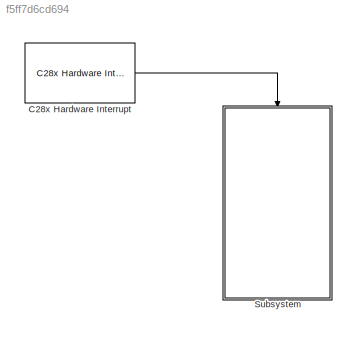
MODEL slx_f5ff7d6cd694
KIND model
CONFIG AbsTol = auto
CONFIG EnableMultiTasking = on
CONFIG FixedStep = auto
CONFIG MaxStep = auto
CONFIG MinStep = auto
CONFIG RelTol = 1e-3
CONFIG SampleTimeConstraint = Unconstrained
CONFIG Solver = FixedStepDiscrete
CONFIG SolverName = FixedStepDiscrete
CONFIG StartTime = 0.0
CONFIG StopTime = Inf
BLOCK [Reference] C28x Hardware Interrupt  REF=c2000lib/Scheduling/C28x Hardware Interrupt
  Ports = [0, 1]
  SourceBlock = c2000lib/Scheduling/C28x Hardware Interrupt
  SourceProductBaseCode = TIC2000
  SourceProductName = Embedded Coder Support Package for Texas Instruments C2000 Processors
  SourceType = C28x Interrupt Block
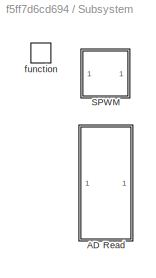
BLOCK [SubSystem] Subsystem
  Ports = [0, 0, 0, 1]
  RequestExecContextInheritance = off
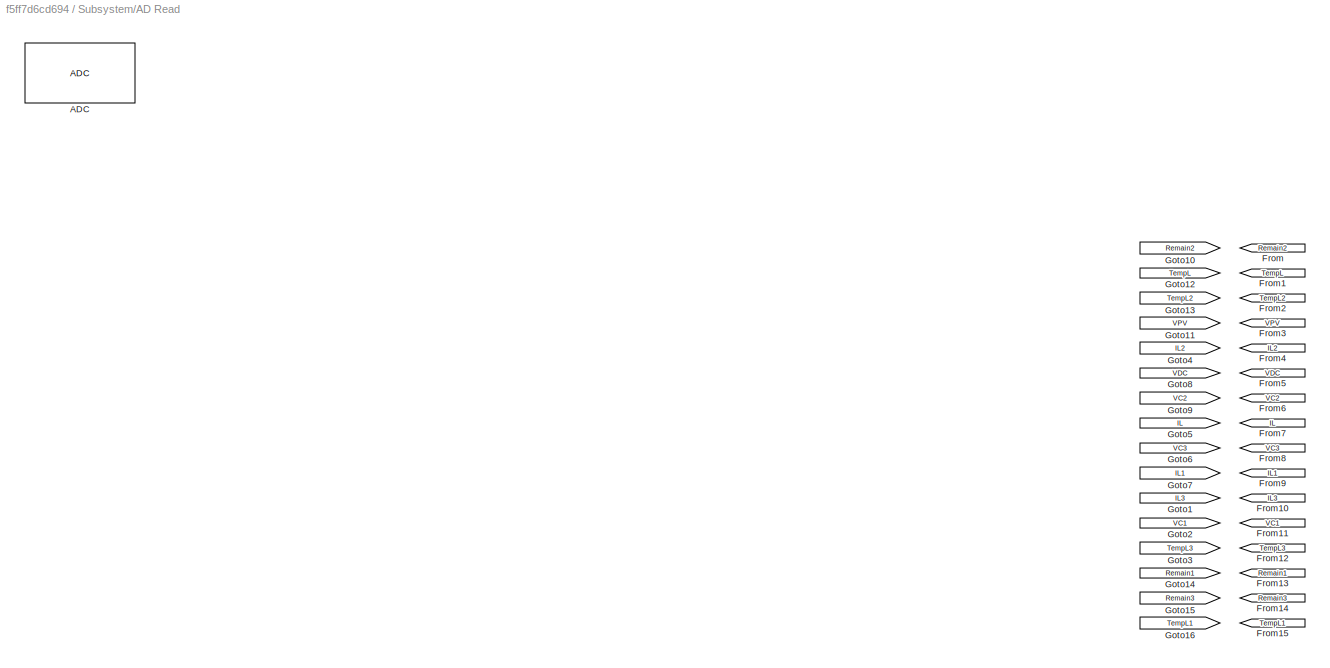
BLOCK [SubSystem] Subsystem/AD Read
  Ports = []
  RequestExecContextInheritance = off
BLOCK [Reference] Subsystem/AD Read/ADC  REF=c2802xlib/ADC
  Ports = [0, 1]
  SourceBlock = c2802xlib/ADC
  SourceProductBaseCode = TIC2000
  SourceProductName = Embedded Coder Support Package for Texas Instruments C2000 Processors
  SourceType = C2802x/03x/05x/06x/M3x/37x/07x/004x ADC
  UserDataPersistent = on
BLOCK [From] Subsystem/AD Read/From
  GotoTag = Remain2
  TagVisibility = global
BLOCK [From] Subsystem/AD Read/From1
  GotoTag = TempL
  TagVisibility = global
BLOCK [From] Subsystem/AD Read/From10
  GotoTag = IL3
  TagVisibility = global
BLOCK [From] Subsystem/AD Read/From11
  GotoTag = VC1
  TagVisibility = global
BLOCK [From] Subsystem/AD Read/From12
  GotoTag = TempL3
  TagVisibility = global
BLOCK [From] Subsystem/AD Read/From13
  GotoTag = Remain1
  TagVisibility = global
BLOCK [From] Subsystem/AD Read/From14
  GotoTag = Remain3
  TagVisibility = global
BLOCK [From] Subsystem/AD Read/From15
  GotoTag = TempL1
  TagVisibility = global
BLOCK [From] Subsystem/AD Read/From2
  GotoTag = TempL2
  TagVisibility = global
BLOCK [From] Subsystem/AD Read/From3
  GotoTag = VPV
  TagVisibility = global
BLOCK [From] Subsystem/AD Read/From4
  GotoTag = IL2
  TagVisibility = global
BLOCK [From] Subsystem/AD Read/From5
  GotoTag = VDC
  TagVisibility = global
BLOCK [From] Subsystem/AD Read/From6
  GotoTag = VC2
  TagVisibility = global
BLOCK [From] Subsystem/AD Read/From7
  GotoTag = IL
  TagVisibility = global
BLOCK [From] Subsystem/AD Read/From8
  GotoTag = VC3
  TagVisibility = global
BLOCK [From] Subsystem/AD Read/From9
  GotoTag = IL1
  TagVisibility = global
BLOCK [Goto] Subsystem/AD Read/Goto1
  GotoTag = IL3
  TagVisibility = global
BLOCK [Goto] Subsystem/AD Read/Goto10
  GotoTag = Remain2
  TagVisibility = global
BLOCK [Goto] Subsystem/AD Read/Goto11
  GotoTag = VPV
  TagVisibility = global
BLOCK [Goto] Subsystem/AD Read/Goto12
  GotoTag = TempL
  TagVisibility = global
BLOCK [Goto] Subsystem/AD Read/Goto13
  GotoTag = TempL2
  TagVisibility = global
BLOCK [Goto] Subsystem/AD Read/Goto14
  GotoTag = Remain1
  TagVisibility = global
BLOCK [Goto] Subsystem/AD Read/Goto15
  GotoTag = Remain3
  TagVisibility = global
BLOCK [Goto] Subsystem/AD Read/Goto16
  GotoTag = TempL1
  TagVisibility = global
BLOCK [Goto] Subsystem/AD Read/Goto2
  GotoTag = VC1
  TagVisibility = global
BLOCK [Goto] Subsystem/AD Read/Goto3
  GotoTag = TempL3
  TagVisibility = global
BLOCK [Goto] Subsystem/AD Read/Goto4
  GotoTag = IL2
  TagVisibility = global
BLOCK [Goto] Subsystem/AD Read/Goto5
  GotoTag = IL
  TagVisibility = global
BLOCK [Goto] Subsystem/AD Read/Goto6
  GotoTag = VC3
  TagVisibility = global
BLOCK [Goto] Subsystem/AD Read/Goto7
  GotoTag = IL1
  TagVisibility = global
BLOCK [Goto] Subsystem/AD Read/Goto8
  GotoTag = VDC
  TagVisibility = global
BLOCK [Goto] Subsystem/AD Read/Goto9
  GotoTag = VC2
  TagVisibility = global
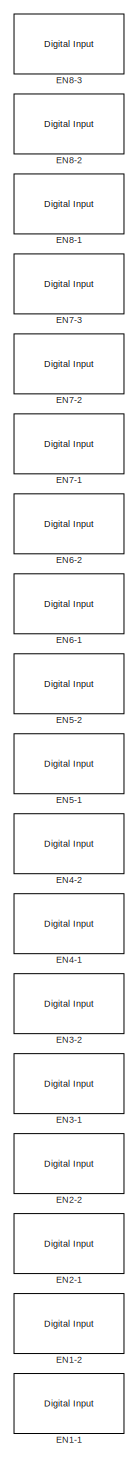
[diagram: Subsystem/SPWM - part 1/2, left side, full height]
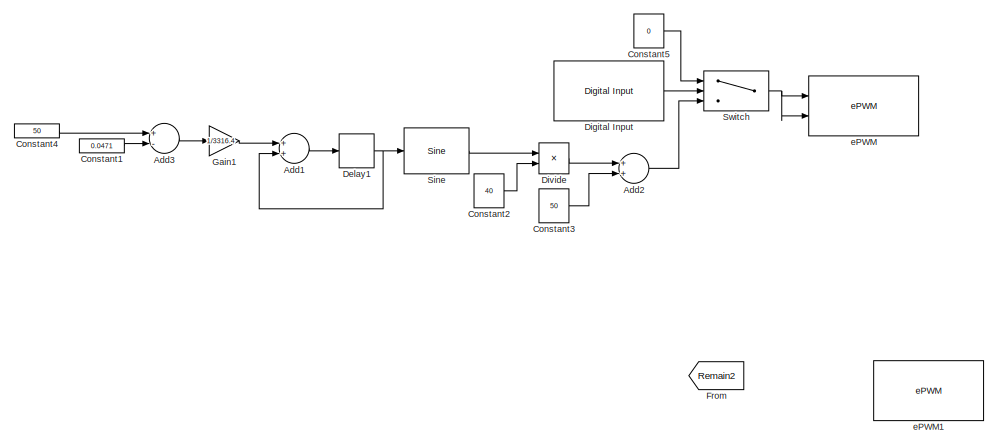
[diagram: Subsystem/SPWM - part 2/2, central region]
BLOCK [SubSystem] Subsystem/SPWM
  Ports = []
  RequestExecContextInheritance = off
BLOCK [Sum] Subsystem/SPWM/Add1
  InputSameDT = off
  OutDataTypeStr = Inherit: Inherit via internal rule
  Ports = [2, 1]
  SaturateOnIntegerOverflow = off
BLOCK [Sum] Subsystem/SPWM/Add2
  InputSameDT = off
  OutDataTypeStr = Inherit: Inherit via internal rule
  Ports = [2, 1]
  SaturateOnIntegerOverflow = off
BLOCK [Sum] Subsystem/SPWM/Add3
  InputSameDT = off
  Inputs = +-
  OutDataTypeStr = Inherit: Inherit via internal rule
  Ports = [2, 1]
  SaturateOnIntegerOverflow = off
BLOCK [Constant] Subsystem/SPWM/Constant1
  Value = 0.0471
  VectorParams1D = off
BLOCK [Constant] Subsystem/SPWM/Constant2
  Value = 40
  VectorParams1D = off
BLOCK [Constant] Subsystem/SPWM/Constant3
  Value = 50
  VectorParams1D = off
BLOCK [Constant] Subsystem/SPWM/Constant4
  Value = 50
  VectorParams1D = off
BLOCK [Constant] Subsystem/SPWM/Constant5
  Value = 0
  VectorParams1D = off
BLOCK [Delay] Subsystem/SPWM/Delay1
  DelayLength = 1
  InputPortMap = u0
  Ports = [1, 1]
BLOCK [Reference] Subsystem/SPWM/Digital Input  REF=c2837xDlib/Digital Input
  Ports = [0, 1]
  SourceBlock = c2837xDlib/Digital Input
  SourceProductBaseCode = TIC2000
  SourceProductName = Embedded Coder Support Package for Texas Instruments C2000 Processors
  SourceType = F2837x GPIO Digital Input
  UserDataPersistent = on
BLOCK [Product] Subsystem/SPWM/Divide
  InputSameDT = off
  Inputs = **
  OutDataTypeStr = Inherit: Inherit via internal rule
  Ports = [2, 1]
  RndMeth = Floor
  SaturateOnIntegerOverflow = off
BLOCK [Reference] Subsystem/SPWM/EN1-1  REF=c2837xDlib/Digital Input
  Ports = [0, 1]
  SourceBlock = c2837xDlib/Digital Input
  SourceProductBaseCode = TIC2000
  SourceProductName = Embedded Coder Support Package for Texas Instruments C2000 Processors
  SourceType = F2837x GPIO Digital Input
  UserDataPersistent = on
BLOCK [Reference] Subsystem/SPWM/EN1-2  REF=c2837xDlib/Digital Input
  Ports = [0, 1]
  SourceBlock = c2837xDlib/Digital Input
  SourceProductBaseCode = TIC2000
  SourceProductName = Embedded Coder Support Package for Texas Instruments C2000 Processors
  SourceType = F2837x GPIO Digital Input
  UserDataPersistent = on
BLOCK [Reference] Subsystem/SPWM/EN2-1  REF=c2837xDlib/Digital Input
  Ports = [0, 1]
  SourceBlock = c2837xDlib/Digital Input
  SourceProductBaseCode = TIC2000
  SourceProductName = Embedded Coder Support Package for Texas Instruments C2000 Processors
  SourceType = F2837x GPIO Digital Input
  UserDataPersistent = on
BLOCK [Reference] Subsystem/SPWM/EN2-2  REF=c2837xDlib/Digital Input
  Ports = [0, 1]
  SourceBlock = c2837xDlib/Digital Input
  SourceProductBaseCode = TIC2000
  SourceProductName = Embedded Coder Support Package for Texas Instruments C2000 Processors
  SourceType = F2837x GPIO Digital Input
  UserDataPersistent = on
BLOCK [Reference] Subsystem/SPWM/EN3-1  REF=c2837xDlib/Digital Input
  Ports = [0, 1]
  SourceBlock = c2837xDlib/Digital Input
  SourceProductBaseCode = TIC2000
  SourceProductName = Embedded Coder Support Package for Texas Instruments C2000 Processors
  SourceType = F2837x GPIO Digital Input
  UserDataPersistent = on
BLOCK [Reference] Subsystem/SPWM/EN3-2  REF=c2837xDlib/Digital Input
  Ports = [0, 1]
  SourceBlock = c2837xDlib/Digital Input
  SourceProductBaseCode = TIC2000
  SourceProductName = Embedded Coder Support Package for Texas Instruments C2000 Processors
  SourceType = F2837x GPIO Digital Input
  UserDataPersistent = on
BLOCK [Reference] Subsystem/SPWM/EN4-1  REF=c2837xDlib/Digital Input
  Ports = [0, 1]
  SourceBlock = c2837xDlib/Digital Input
  SourceProductBaseCode = TIC2000
  SourceProductName = Embedded Coder Support Package for Texas Instruments C2000 Processors
  SourceType = F2837x GPIO Digital Input
  UserDataPersistent = on
BLOCK [Reference] Subsystem/SPWM/EN4-2  REF=c2837xDlib/Digital Input
  Ports = [0, 1]
  SourceBlock = c2837xDlib/Digital Input
  SourceProductBaseCode = TIC2000
  SourceProductName = Embedded Coder Support Package for Texas Instruments C2000 Processors
  SourceType = F2837x GPIO Digital Input
  UserDataPersistent = on
BLOCK [Reference] Subsystem/SPWM/EN5-1  REF=c2837xDlib/Digital Input
  Ports = [0, 1]
  SourceBlock = c2837xDlib/Digital Input
  SourceProductBaseCode = TIC2000
  SourceProductName = Embedded Coder Support Package for Texas Instruments C2000 Processors
  SourceType = F2837x GPIO Digital Input
  UserDataPersistent = on
BLOCK [Reference] Subsystem/SPWM/EN5-2  REF=c2837xDlib/Digital Input
  Ports = [0, 1]
  SourceBlock = c2837xDlib/Digital Input
  SourceProductBaseCode = TIC2000
  SourceProductName = Embedded Coder Support Package for Texas Instruments C2000 Processors
  SourceType = F2837x GPIO Digital Input
  UserDataPersistent = on
BLOCK [Reference] Subsystem/SPWM/EN6-1  REF=c2837xDlib/Digital Input
  Ports = [0, 1]
  SourceBlock = c2837xDlib/Digital Input
  SourceProductBaseCode = TIC2000
  SourceProductName = Embedded Coder Support Package for Texas Instruments C2000 Processors
  SourceType = F2837x GPIO Digital Input
  UserDataPersistent = on
BLOCK [Reference] Subsystem/SPWM/EN6-2  REF=c2837xDlib/Digital Input
  Ports = [0, 1]
  SourceBlock = c2837xDlib/Digital Input
  SourceProductBaseCode = TIC2000
  SourceProductName = Embedded Coder Support Package for Texas Instruments C2000 Processors
  SourceType = F2837x GPIO Digital Input
  UserDataPersistent = on
BLOCK [Reference] Subsystem/SPWM/EN7-1  REF=c2837xDlib/Digital Input
  Ports = [0, 1]
  SourceBlock = c2837xDlib/Digital Input
  SourceProductBaseCode = TIC2000
  SourceProductName = Embedded Coder Support Package for Texas Instruments C2000 Processors
  SourceType = F2837x GPIO Digital Input
  UserDataPersistent = on
BLOCK [Reference] Subsystem/SPWM/EN7-2  REF=c2837xDlib/Digital Input
  Ports = [0, 1]
  SourceBlock = c2837xDlib/Digital Input
  SourceProductBaseCode = TIC2000
  SourceProductName = Embedded Coder Support Package for Texas Instruments C2000 Processors
  SourceType = F2837x GPIO Digital Input
  UserDataPersistent = on
BLOCK [Reference] Subsystem/SPWM/EN7-3  REF=c2837xDlib/Digital Input
  Ports = [0, 1]
  SourceBlock = c2837xDlib/Digital Input
  SourceProductBaseCode = TIC2000
  SourceProductName = Embedded Coder Support Package for Texas Instruments C2000 Processors
  SourceType = F2837x GPIO Digital Input
  UserDataPersistent = on
BLOCK [Reference] Subsystem/SPWM/EN8-1  REF=c2837xDlib/Digital Input
  Ports = [0, 1]
  SourceBlock = c2837xDlib/Digital Input
  SourceProductBaseCode = TIC2000
  SourceProductName = Embedded Coder Support Package for Texas Instruments C2000 Processors
  SourceType = F2837x GPIO Digital Input
  UserDataPersistent = on
BLOCK [Reference] Subsystem/SPWM/EN8-2  REF=c2837xDlib/Digital Input
  Ports = [0, 1]
  SourceBlock = c2837xDlib/Digital Input
  SourceProductBaseCode = TIC2000
  SourceProductName = Embedded Coder Support Package for Texas Instruments C2000 Processors
  SourceType = F2837x GPIO Digital Input
  UserDataPersistent = on
BLOCK [Reference] Subsystem/SPWM/EN8-3  REF=c2837xDlib/Digital Input
  Ports = [0, 1]
  SourceBlock = c2837xDlib/Digital Input
  SourceProductBaseCode = TIC2000
  SourceProductName = Embedded Coder Support Package for Texas Instruments C2000 Processors
  SourceType = F2837x GPIO Digital Input
  UserDataPersistent = on
BLOCK [From] Subsystem/SPWM/From
  GotoTag = Remain2
  TagVisibility = global
BLOCK [Gain] Subsystem/SPWM/Gain1
  Gain = 1/3316.4
  OutDataTypeStr = Inherit: Inherit via internal rule
  ParamDataTypeStr = Inherit: Inherit via internal rule
  SaturateOnIntegerOverflow = off
BLOCK [Reference] Subsystem/SPWM/Sine  REF=simulink/Lookup
Tables/Sine
  Ports = [1, 1]
  SourceBlock = simulink/Lookup\nTables/Sine
  SourceProductBaseCode = SL
  SourceProductName = Simulink
  SourceType = Sine and Cosine
BLOCK [Switch] Subsystem/SPWM/Switch
  InputSameDT = off
  SaturateOnIntegerOverflow = off
  Threshold = 1
BLOCK [Reference] Subsystem/SPWM/ePWM  REF=c2802xlib/ePWM
  Ports = [2]
  SourceBlock = c2802xlib/ePWM
  SourceProductBaseCode = TIC2000
  SourceProductName = Embedded Coder Support Package for Texas Instruments C2000 Processors
  SourceType = C2802x/03x/05x/06x/M3x/37x/07x/004x ePWM
  UserDataPersistent = on
BLOCK [Reference] Subsystem/SPWM/ePWM1  REF=c2802xlib/ePWM
  Ports = [2]
  SourceBlock = c2802xlib/ePWM
  SourceProductBaseCode = TIC2000
  SourceProductName = Embedded Coder Support Package for Texas Instruments C2000 Processors
  SourceType = C2802x/03x/05x/06x/M3x/37x/07x/004x ePWM
  UserDataPersistent = on
BLOCK [TriggerPort] Subsystem/function
  Ports = []
  SampleTime = 1e-5
  StatesWhenEnabling = held
  TriggerType = function-call
  VariantControl = (inherit)
LINE C28x Hardware Interrupt:1 -> Subsystem:trigger
LINE Subsystem/SPWM/Add1:1 -> Subsystem/SPWM/Delay1:1
LINE Subsystem/SPWM/Add2:1 -> Subsystem/SPWM/Switch:3
LINE Subsystem/SPWM/Add3:1 -> Subsystem/SPWM/Gain1:1
LINE Subsystem/SPWM/Constant1:1 -> Subsystem/SPWM/Add3:2
LINE Subsystem/SPWM/Constant2:1 -> Subsystem/SPWM/Divide:2
LINE Subsystem/SPWM/Constant3:1 -> Subsystem/SPWM/Add2:2
LINE Subsystem/SPWM/Constant4:1 -> Subsystem/SPWM/Add3:1
LINE Subsystem/SPWM/Constant5:1 -> Subsystem/SPWM/Switch:1
NET Subsystem/SPWM/Delay1:1 -> Subsystem/SPWM/Add1:2, Subsystem/SPWM/Sine:1
LINE Subsystem/SPWM/Digital Input:1 -> Subsystem/SPWM/Switch:2
LINE Subsystem/SPWM/Divide:1 -> Subsystem/SPWM/Add2:1
LINE Subsystem/SPWM/Gain1:1 -> Subsystem/SPWM/Add1:1
LINE Subsystem/SPWM/Sine:1 -> Subsystem/SPWM/Divide:1
NET Subsystem/SPWM/Switch:1 -> Subsystem/SPWM/ePWM:1, Subsystem/SPWM/ePWM:2
note: NET lines group one-source signal fan-out (src -> all destinations, sorted); 1:1 wires keep LINE
